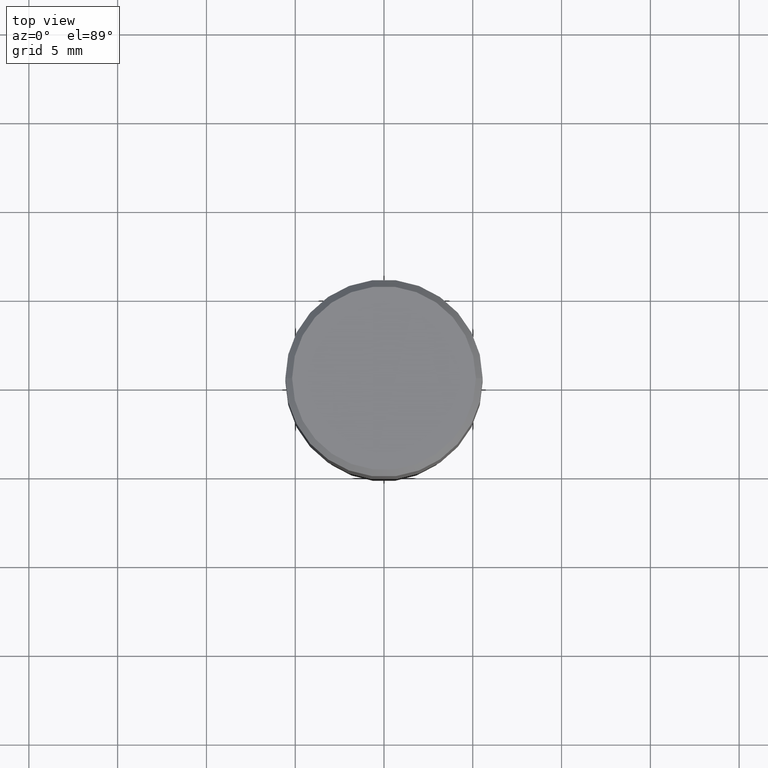
[diagram: clean part render]
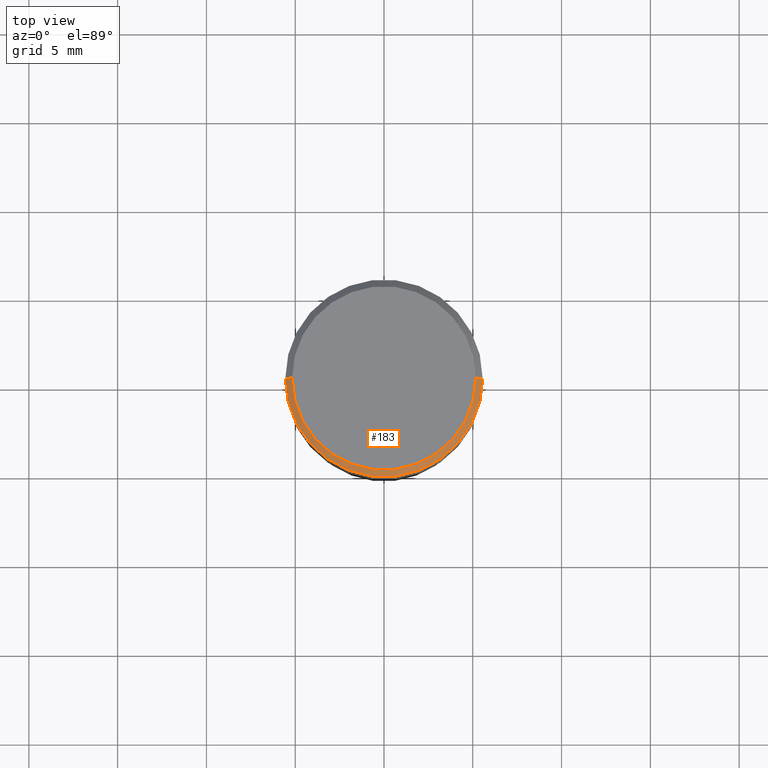
[diagram: same view with one face highlighted and labeled with its STEP entity id]
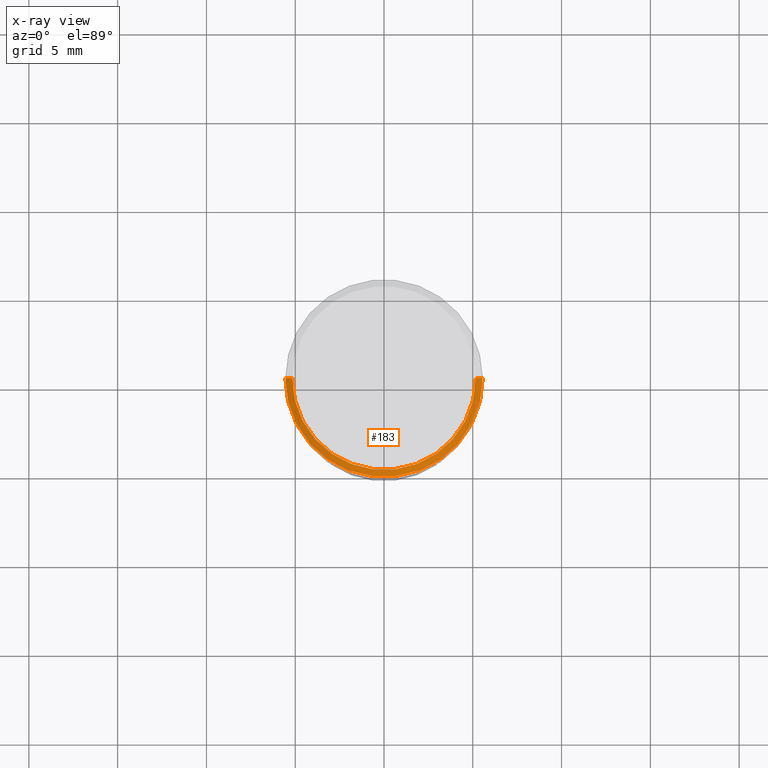
[diagram: x-ray of the same camera — body ghosted, the highlighted face saturated]
A machine part, top view. The second image highlights one B-rep face of the part: STEP entity #183.
The next image is the same camera in x-ray: the body ghosted, the highlighted face saturated — about 0% of this face is hidden behind the body in this view.
In plain terms, the highlighted conical surface has half-angle 45 deg.
Its self-contained STEP definition (entity closure, byte-faithful):
#8 = ORIENTED_EDGE ( 'NONE', *, *, #377, .T. ) ;
#18 = LINE ( 'NONE', #168, #293 ) ;
#20 = DIRECTION ( 'NONE',  ( -1.000000000000000000, 6.982962677686266711E-15, 0.000000000000000000 ) ) ;
#50 = LINE ( 'NONE', #228, #449 ) ;
#53 = CARTESIAN_POINT ( 'NONE',  ( 0.2037499999999999867, -1.475466312070559275E-15, 1.060151966214670170E-16 ) ) ;
#68 = FACE_OUTER_BOUND ( 'NONE', #107, .T. ) ;
#70 = CARTESIAN_POINT ( 'NONE',  ( 3.668203209277705088E-31, -5.237222008264718399E-17, -0.01499999999999999944 ) ) ;
#71 = EDGE_CURVE ( 'NONE', #408, #131, #50, .T. ) ;
#77 = VERTEX_POINT ( 'NONE', #163 ) ;
#92 = DIRECTION ( 'NONE',  ( 0.7071067811865452413, -7.319954787623248157E-15, -0.7071067811865497932 ) ) ;
#107 = EDGE_LOOP ( 'NONE', ( #172, #309, #150, #8 ) ) ;
#114 = CIRCLE ( 'NONE', #416, 0.2037499999999999867 ) ;
#115 = AXIS2_PLACEMENT_3D ( 'NONE', #70, #324, #20 ) ;
#131 = VERTEX_POINT ( 'NONE', #466 ) ;
#144 = DIRECTION ( 'NONE',  ( -2.445468806185136597E-29, 3.491481338843145583E-15, 1.000000000000000000 ) ) ;
#150 = ORIENTED_EDGE ( 'NONE', *, *, #71, .T. ) ;
#160 = CIRCLE ( 'NONE', #248, 0.2187500000000000000 ) ;
#163 = CARTESIAN_POINT ( 'NONE',  ( 0.2187500000000000000, -1.579895305826517922E-15, -0.01499999999999999944 ) ) ;
#168 = CARTESIAN_POINT ( 'NONE',  ( 0.2187500000000000000, -1.553106157095169608E-15, -0.01499999999999999944 ) ) ;
#172 = ORIENTED_EDGE ( 'NONE', *, *, #339, .F. ) ;
#180 = DIRECTION ( 'NONE',  ( 1.000000000000000000, -6.982962677686266711E-15, 0.000000000000000000 ) ) ;
#183 = ADVANCED_FACE ( 'NONE', ( #68 ), #291, .T. ) ;
#198 = CARTESIAN_POINT ( 'NONE',  ( -2.592568563193567003E-45, 3.701500806376036554E-31, 1.060151966214568974E-16 ) ) ;
#202 = CARTESIAN_POINT ( 'NONE',  ( 3.668203209277705088E-31, -5.237222008264718399E-17, -0.01499999999999999944 ) ) ;
#228 = CARTESIAN_POINT ( 'NONE',  ( -0.2187500000000000000, 1.475150865661223567E-15, -0.01499999999999999944 ) ) ;
#233 = DIRECTION ( 'NONE',  ( -0.7071067811865452413, 2.468850131082233000E-15, -0.7071067811865497932 ) ) ;
#236 = DIRECTION ( 'NONE',  ( 1.000000000000000000, -6.982962677686266711E-15, 4.875065411617369217E-29 ) ) ;
#248 = AXIS2_PLACEMENT_3D ( 'NONE', #202, #144, #180 ) ;
#291 = CONICAL_SURFACE ( 'NONE', #115, 0.2187500000000000000, 0.7853981633974450594 ) ;
#293 = VECTOR ( 'NONE', #92, 39.37007874015748143 ) ;
#309 = ORIENTED_EDGE ( 'NONE', *, *, #336, .F. ) ;
#314 = VERTEX_POINT ( 'NONE', #53 ) ;
#324 = DIRECTION ( 'NONE',  ( 2.445468806185136597E-29, -3.491481338843145583E-15, -1.000000000000000000 ) ) ;
#336 = EDGE_CURVE ( 'NONE', #408, #314, #114, .T. ) ;
#339 = EDGE_CURVE ( 'NONE', #314, #77, #18, .T. ) ;
#341 = DIRECTION ( 'NONE',  ( -2.445468806185136597E-29, 3.491481338843145583E-15, 1.000000000000000000 ) ) ;
#359 = CARTESIAN_POINT ( 'NONE',  ( -0.2037499999999999867, 1.448964755619900421E-15, 1.060151966214468518E-16 ) ) ;
#377 = EDGE_CURVE ( 'NONE', #131, #77, #160, .T. ) ;
#408 = VERTEX_POINT ( 'NONE', #359 ) ;
#416 = AXIS2_PLACEMENT_3D ( 'NONE', #198, #341, #236 ) ;
#449 = VECTOR ( 'NONE', #233, 39.37007874015748143 ) ;
#466 = CARTESIAN_POINT ( 'NONE',  ( -0.2187500000000000000, 7.746759649129616577E-16, -0.01499999999999999944 ) ) ;